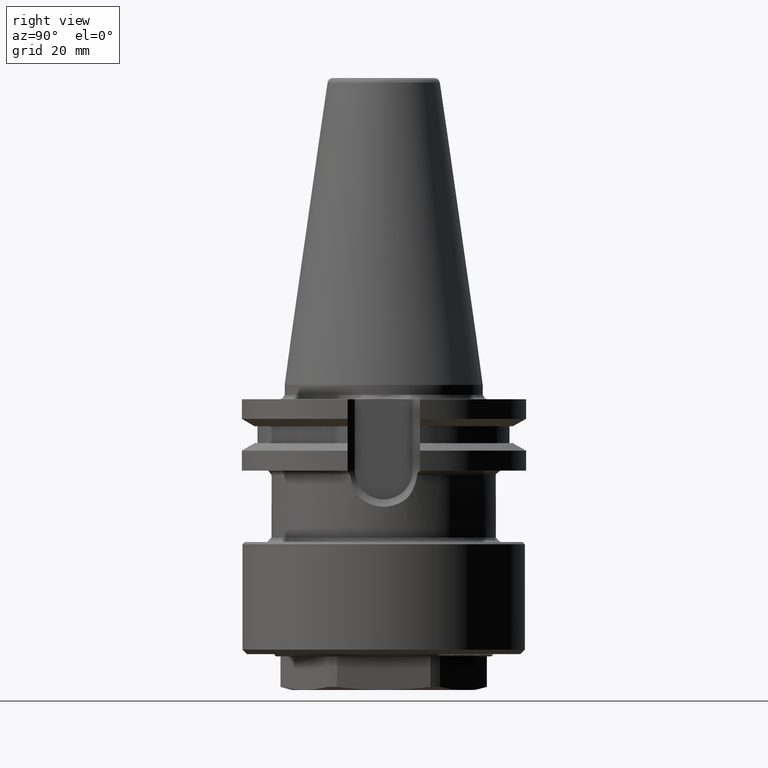
[diagram: clean part render]
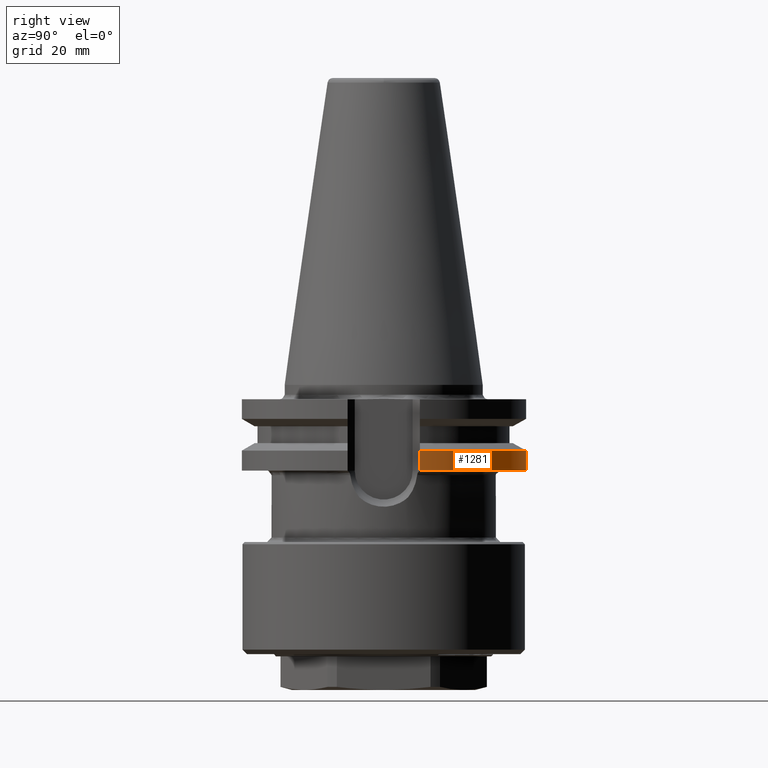
[diagram: same view with one face highlighted and labeled with its STEP entity id]
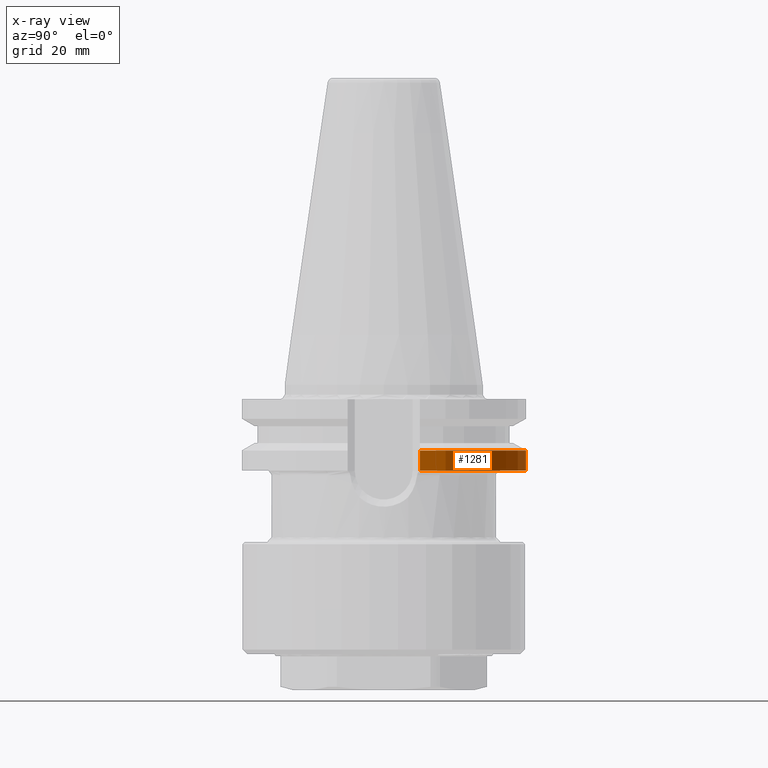
[diagram: x-ray of the same camera — body ghosted, the highlighted face saturated]
A machine part, right view. The second image highlights one B-rep face of the part: STEP entity #1281.
The next image is the same camera in x-ray: the body ghosted, the highlighted face saturated — about 0% of this face is hidden behind the body in this view.
In plain terms, the highlighted cylindrical surface (partial cylindrical patch) has radius 31.775 mm, axis along (0, 0, -1).
Its self-contained STEP definition (entity closure, byte-faithful):
#41=CYLINDRICAL_SURFACE('',#1415,31.775);
#93=LINE('',#2245,#176);
#94=LINE('',#2247,#177);
#176=VECTOR('',#1687,1000.);
#177=VECTOR('',#1688,1000.);
#443=ORIENTED_EDGE('',*,*,#744,.F.);
#444=ORIENTED_EDGE('',*,*,#743,.T.);
#445=ORIENTED_EDGE('',*,*,#745,.T.);
#446=ORIENTED_EDGE('',*,*,#746,.F.);
#743=EDGE_CURVE('',#896,#897,#986,.T.);
#744=EDGE_CURVE('',#896,#898,#93,.T.);
#745=EDGE_CURVE('',#897,#899,#94,.T.);
#746=EDGE_CURVE('',#898,#899,#987,.T.);
#896=VERTEX_POINT('',#2237);
#897=VERTEX_POINT('',#2242);
#898=VERTEX_POINT('',#2246);
#899=VERTEX_POINT('',#2248);
#986=CIRCLE('',#1414,31.775);
#987=CIRCLE('',#1416,31.775);
#1058=EDGE_LOOP('',(#443,#444,#445,#446));
#1157=FACE_BOUND('',#1058,.T.);
#1281=ADVANCED_FACE('',(#1157),#41,.T.);
#1414=AXIS2_PLACEMENT_3D('',#2243,#1683,#1684);
#1415=AXIS2_PLACEMENT_3D('',#2244,#1685,#1686);
#1416=AXIS2_PLACEMENT_3D('',#2249,#1689,#1690);
#1683=DIRECTION('',(0.,2.22044604925031E-16,-1.));
#1684=DIRECTION('',(-1.,0.,0.));
#1685=DIRECTION('',(0.,2.22044604925031E-16,-1.));
#1686=DIRECTION('',(-1.,0.,0.));
#1687=DIRECTION('',(0.,2.22044604925031E-16,-1.));
#1688=DIRECTION('',(0.,2.22044604925031E-16,-1.));
#1689=DIRECTION('',(0.,2.22044604925031E-16,-1.));
#1690=DIRECTION('',(-1.,0.,0.));
#2237=CARTESIAN_POINT('',(-18.5,25.8340981069593,-14.6362703987865));
#2242=CARTESIAN_POINT('',(30.7383819515602,8.04999999999998,-14.6362703987865));
#2243=CARTESIAN_POINT('',(0.,3.24990487827447E-15,-14.6362703987865));
#2244=CARTESIAN_POINT('',(0.,1.33226762955019E-14,-60.));
#2245=CARTESIAN_POINT('',(-18.5,25.8340981069594,-60.));
#2246=CARTESIAN_POINT('',(-18.5,25.8340981069593,-19.1));
#2247=CARTESIAN_POINT('',(30.7383819515602,8.04999999999999,-60.));
#2248=CARTESIAN_POINT('',(30.7383819515602,8.04999999999998,-19.1));
#2249=CARTESIAN_POINT('',(0.,4.2410519540681E-15,-19.1));